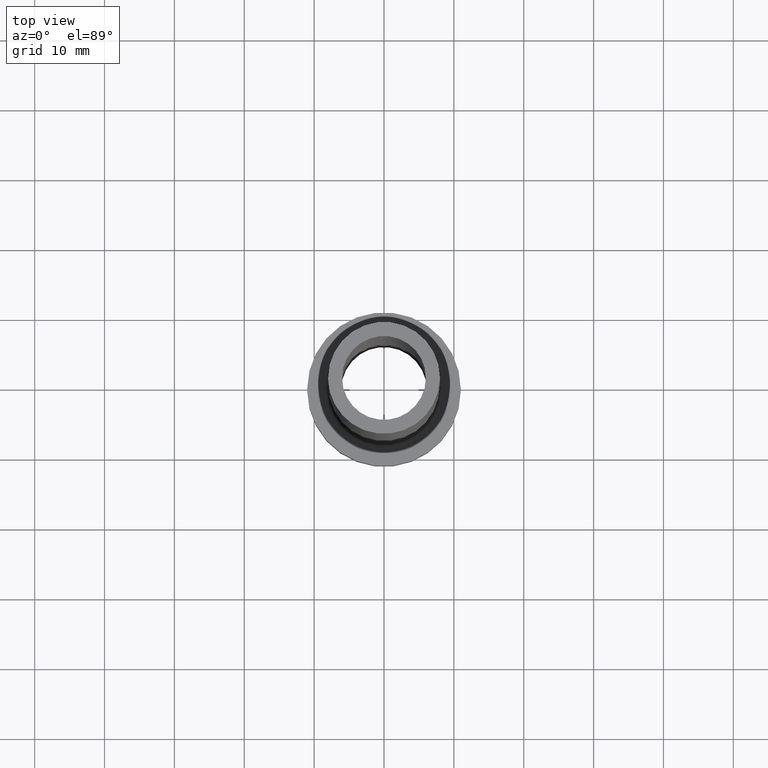
[diagram: clean part render]
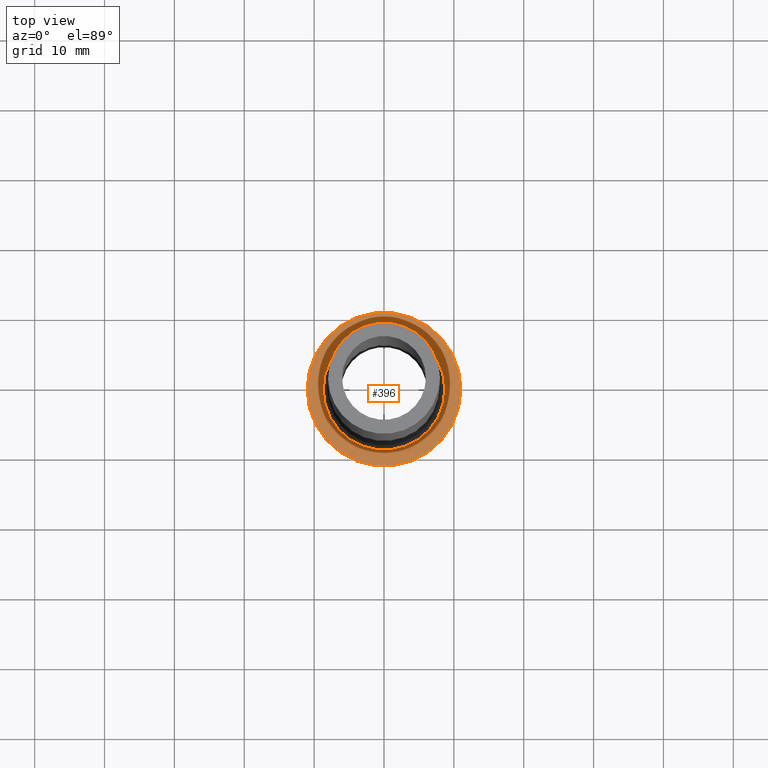
[diagram: same view with one face highlighted and labeled with its STEP entity id]
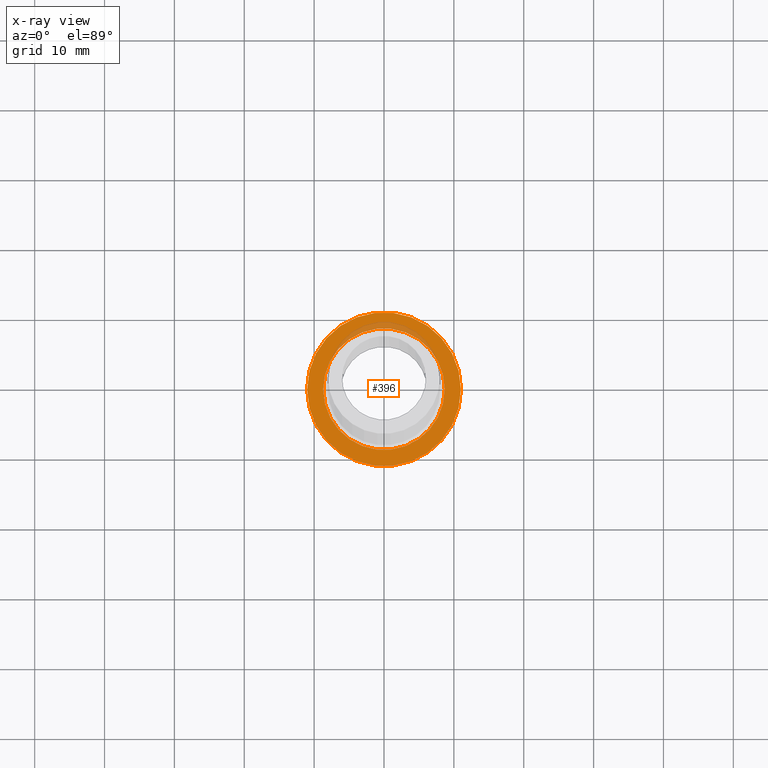
[diagram: x-ray of the same camera — body ghosted, the highlighted face saturated]
A machine part, top view. The second image highlights one B-rep face of the part: STEP entity #396.
The next image is the same camera in x-ray: the body ghosted, the highlighted face saturated — about 8% of this face is hidden behind the body in this view.
In plain terms, the highlighted planar face has unit normal (0, 0, 1).
Its self-contained STEP definition (entity closure, byte-faithful):
#6 = CARTESIAN_POINT ( 'NONE',  ( 0.000000000000000000, 0.000000000000000000, 7.000000000000000000 ) ) ;
#17 = DIRECTION ( 'NONE',  ( -0.000000000000000000, -0.000000000000000000, -1.000000000000000000 ) ) ;
#44 = EDGE_LOOP ( 'NONE', ( #406, #344 ) ) ;
#49 = DIRECTION ( 'NONE',  ( 1.000000000000000000, 0.000000000000000000, -0.000000000000000000 ) ) ;
#54 = CIRCLE ( 'NONE', #292, 11.00000000000000000 ) ;
#68 = EDGE_CURVE ( 'NONE', #345, #364, #262, .T. ) ;
#81 = CARTESIAN_POINT ( 'NONE',  ( 8.699999999999999289, 0.000000000000000000, 6.999999999999999112 ) ) ;
#87 = CARTESIAN_POINT ( 'NONE',  ( 0.000000000000000000, 0.000000000000000000, 7.000000000000000000 ) ) ;
#91 = PLANE ( 'NONE',  #218 ) ;
#111 = CARTESIAN_POINT ( 'NONE',  ( -11.00000000000000000, 0.000000000000000000, 7.000000000000000000 ) ) ;
#119 = CARTESIAN_POINT ( 'NONE',  ( 0.000000000000000000, 0.000000000000000000, 7.000000000000000000 ) ) ;
#124 = VERTEX_POINT ( 'NONE', #358 ) ;
#155 = VERTEX_POINT ( 'NONE', #111 ) ;
#163 = DIRECTION ( 'NONE',  ( 1.000000000000000000, 0.000000000000000000, 0.000000000000000000 ) ) ;
#171 = DIRECTION ( 'NONE',  ( 0.000000000000000000, 0.000000000000000000, 1.000000000000000000 ) ) ;
#177 = AXIS2_PLACEMENT_3D ( 'NONE', #326, #319, #419 ) ;
#218 = AXIS2_PLACEMENT_3D ( 'NONE', #87, #270, #49 ) ;
#221 = CARTESIAN_POINT ( 'NONE',  ( -8.699999999999999289, 1.065442715258197248E-15, 6.999999999999999112 ) ) ;
#225 = EDGE_CURVE ( 'NONE', #364, #345, #342, .T. ) ;
#237 = DIRECTION ( 'NONE',  ( 1.000000000000000000, 0.000000000000000000, 0.000000000000000000 ) ) ;
#242 = CIRCLE ( 'NONE', #449, 11.00000000000000000 ) ;
#259 = EDGE_CURVE ( 'NONE', #124, #155, #54, .T. ) ;
#262 = CIRCLE ( 'NONE', #411, 8.699999999999999289 ) ;
#265 = DIRECTION ( 'NONE',  ( 1.000000000000000000, 0.000000000000000000, 0.000000000000000000 ) ) ;
#270 = DIRECTION ( 'NONE',  ( 0.000000000000000000, 0.000000000000000000, 1.000000000000000000 ) ) ;
#292 = AXIS2_PLACEMENT_3D ( 'NONE', #6, #335, #265 ) ;
#315 = ORIENTED_EDGE ( 'NONE', *, *, #386, .T. ) ;
#319 = DIRECTION ( 'NONE',  ( -0.000000000000000000, -0.000000000000000000, -1.000000000000000000 ) ) ;
#326 = CARTESIAN_POINT ( 'NONE',  ( 0.000000000000000000, 0.000000000000000000, 7.000000000000000000 ) ) ;
#335 = DIRECTION ( 'NONE',  ( 0.000000000000000000, 0.000000000000000000, 1.000000000000000000 ) ) ;
#342 = CIRCLE ( 'NONE', #177, 8.699999999999999289 ) ;
#344 = ORIENTED_EDGE ( 'NONE', *, *, #225, .T. ) ;
#345 = VERTEX_POINT ( 'NONE', #81 ) ;
#358 = CARTESIAN_POINT ( 'NONE',  ( 11.00000000000000000, 1.347111479062088405E-15, 7.000000000000000000 ) ) ;
#364 = VERTEX_POINT ( 'NONE', #221 ) ;
#376 = FACE_BOUND ( 'NONE', #44, .T. ) ;
#377 = ORIENTED_EDGE ( 'NONE', *, *, #259, .T. ) ;
#379 = FACE_OUTER_BOUND ( 'NONE', #404, .T. ) ;
#380 = CARTESIAN_POINT ( 'NONE',  ( 0.000000000000000000, 0.000000000000000000, 7.000000000000000000 ) ) ;
#386 = EDGE_CURVE ( 'NONE', #155, #124, #242, .T. ) ;
#396 = ADVANCED_FACE ( 'NONE', ( #376, #379 ), #91, .T. ) ;
#404 = EDGE_LOOP ( 'NONE', ( #315, #377 ) ) ;
#406 = ORIENTED_EDGE ( 'NONE', *, *, #68, .T. ) ;
#411 = AXIS2_PLACEMENT_3D ( 'NONE', #380, #17, #163 ) ;
#419 = DIRECTION ( 'NONE',  ( 1.000000000000000000, 0.000000000000000000, 0.000000000000000000 ) ) ;
#449 = AXIS2_PLACEMENT_3D ( 'NONE', #119, #171, #237 ) ;